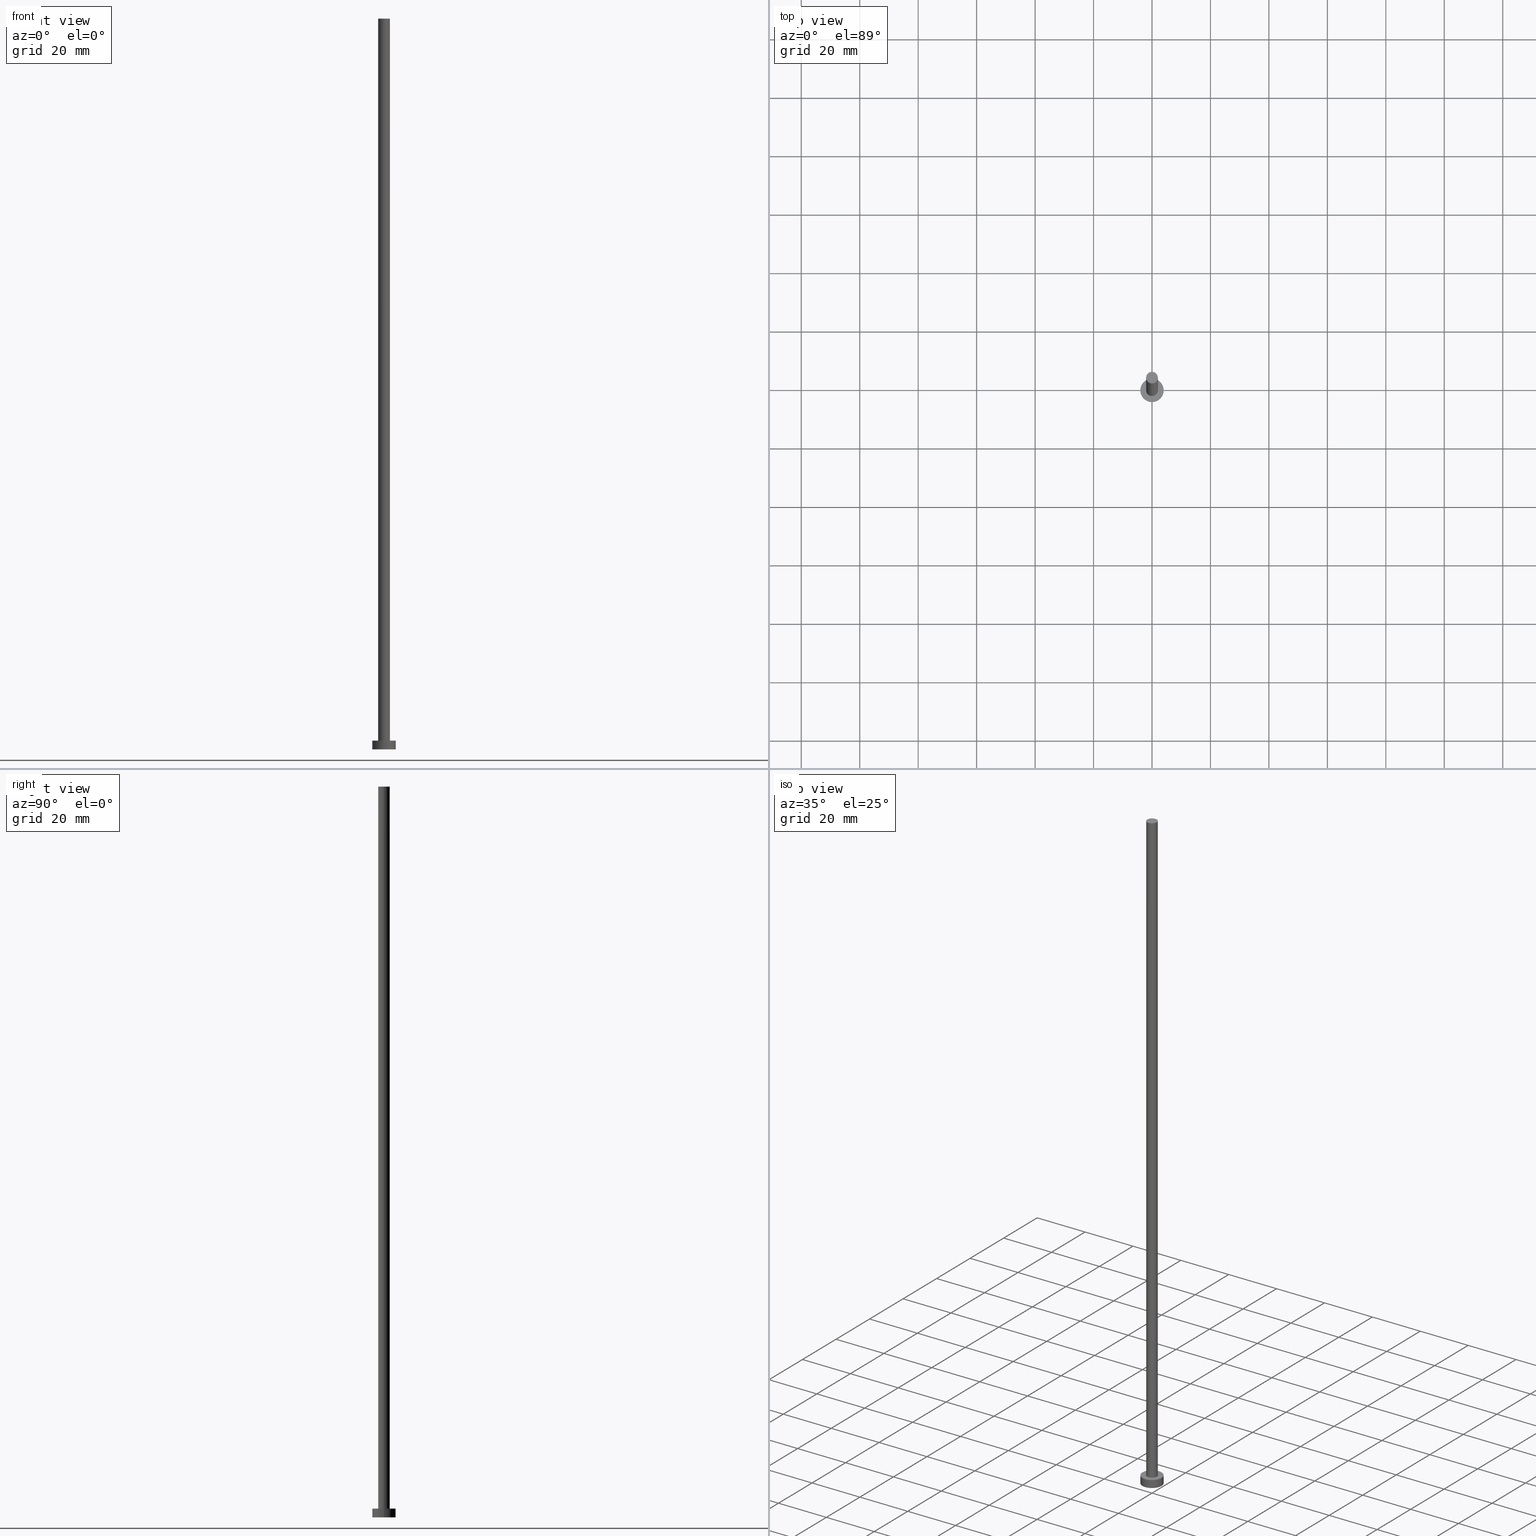
[diagram: canonical four-view strip — front | top / right | iso, engineering-drawing reading convention]
A machine part, canonical four-view strip (front | top / right | iso — engineering-drawing reading convention). The complete STEP part file that produces these views, byte-faithful:
ISO-10303-21;
HEADER;
FILE_DESCRIPTION (( 'STEP AP203' ),
    '1' );
FILE_NAME ('23d9.STEP',
    '2023-02-13T13:57:24',
    ( '' ),
    ( '' ),
    'SwSTEP 2.0',
    'SolidWorks 2019',
    '' );
FILE_SCHEMA (( 'CONFIG_CONTROL_DESIGN' ));
ENDSEC;

DATA;
#1 = CYLINDRICAL_SURFACE ( 'NONE', #250, 4.000000000000000000 ) ;
#2 = DIRECTION ( 'NONE',  ( 1.000000000000000000, 0.000000000000000000, 0.000000000000000000 ) ) ;
#3 = PRODUCT_DEFINITION ( 'NEZN�M�', '', #213, #71 ) ;
#4 =( LENGTH_UNIT ( ) NAMED_UNIT ( * ) SI_UNIT ( .MILLI., .METRE. ) );
#5 = PERSON_AND_ORGANIZATION ( #16, #43 ) ;
#6 = APPROVAL_STATUS ( 'not_yet_approved' ) ;
#7 = CARTESIAN_POINT ( 'NONE',  ( -4.000000000000000000, 0.000000000000000000, 3.000000000000000000 ) ) ;
#8 = PERSON_AND_ORGANIZATION ( #16, #43 ) ;
#9 = ADVANCED_FACE ( 'NONE', ( #72 ), #151, .T. ) ;
#10 = PERSON_AND_ORGANIZATION ( #16, #43 ) ;
#11 = EDGE_LOOP ( 'NONE', ( #129, #175, #130, #110 ) ) ;
#12 = ORIENTED_EDGE ( 'NONE', *, *, #241, .T. ) ;
#13 = ORIENTED_EDGE ( 'NONE', *, *, #154, .T. ) ;
#14 = DIRECTION ( 'NONE',  ( -1.000000000000000000, 0.000000000000000000, 0.000000000000000000 ) ) ;
#15 = CC_DESIGN_APPROVAL ( #200, ( #213 ) ) ;
#16 = PERSON ( 'NEUR�EN�', 'NEUR�EN�', 'NEUR�EN�', ('NEUR�EN�'), ('NEUR�EN�'), ('NEUR�EN�') ) ;
#17 = DIRECTION ( 'NONE',  ( -1.000000000000000000, 0.000000000000000000, 0.000000000000000000 ) ) ;
#18 = DIRECTION ( 'NONE',  ( -0.000000000000000000, -0.000000000000000000, -1.000000000000000000 ) ) ;
#19 = ADVANCED_FACE ( 'NONE', ( #191 ), #92, .T. ) ;
#20 =( GEOMETRIC_REPRESENTATION_CONTEXT ( 3 ) GLOBAL_UNCERTAINTY_ASSIGNED_CONTEXT ( ( #224 ) ) GLOBAL_UNIT_ASSIGNED_CONTEXT ( ( #4, #240, #104 ) ) REPRESENTATION_CONTEXT ( 'NONE', 'WORKASPACE' ) );
#21 = DIRECTION ( 'NONE',  ( 1.000000000000000000, 0.000000000000000000, -0.000000000000000000 ) ) ;
#22 = DIRECTION ( 'NONE',  ( 0.000000000000000000, 0.000000000000000000, 1.000000000000000000 ) ) ;
#23 = CARTESIAN_POINT ( 'NONE',  ( 0.000000000000000000, 0.000000000000000000, 0.000000000000000000 ) ) ;
#24 = LINE ( 'NONE', #7, #239 ) ;
#25 = APPLICATION_PROTOCOL_DEFINITION ( 'international standard', 'config_control_design', 1994, #88 ) ;
#26 = CARTESIAN_POINT ( 'NONE',  ( -4.000000000000000000, 0.000000000000000000, 0.000000000000000000 ) ) ;
#27 = EDGE_CURVE ( 'NONE', #190, #208, #68, .T. ) ;
#28 = COORDINATED_UNIVERSAL_TIME_OFFSET ( 1, 0, .AHEAD. ) ;
#29 = CC_DESIGN_APPROVAL ( #40, ( #70 ) ) ;
#30 = DATE_TIME_ROLE ( 'creation_date' ) ;
#31 = APPROVAL_ROLE ( '' ) ;
#32 = VERTEX_POINT ( 'NONE', #216 ) ;
#33 = ADVANCED_BREP_SHAPE_REPRESENTATION ( '23d9', ( #108, #87 ), #20 ) ;
#34 = VERTEX_POINT ( 'NONE', #157 ) ;
#35 = APPROVAL_PERSON_ORGANIZATION ( #5, #200, #124 ) ;
#36 = CARTESIAN_POINT ( 'NONE',  ( 0.000000000000000000, 0.000000000000000000, 250.0000000000000000 ) ) ;
#37 = VECTOR ( 'NONE', #62, 1000.000000000000000 ) ;
#38 = CARTESIAN_POINT ( 'NONE',  ( -2.000000000000000000, 0.000000000000000000, 250.0000000000000000 ) ) ;
#39 = FACE_OUTER_BOUND ( 'NONE', #111, .T. ) ;
#40 = APPROVAL ( #168, 'NEUR�EN�' ) ;
#41 = CARTESIAN_POINT ( 'NONE',  ( 2.000000000000000000, 2.449293598294706414E-16, 250.0000000000000000 ) ) ;
#42 = AXIS2_PLACEMENT_3D ( 'NONE', #115, #22, #181 ) ;
#43 = ORGANIZATION ( 'NEUR�EN�', 'NEUR�EN�', '' ) ;
#44 = DIRECTION ( 'NONE',  ( 1.000000000000000000, 0.000000000000000000, 0.000000000000000000 ) ) ;
#45 = DIRECTION ( 'NONE',  ( 1.000000000000000000, 0.000000000000000000, 0.000000000000000000 ) ) ;
#46 = DIRECTION ( 'NONE',  ( 0.000000000000000000, 0.000000000000000000, 1.000000000000000000 ) ) ;
#47 = DIRECTION ( 'NONE',  ( -0.000000000000000000, -0.000000000000000000, -1.000000000000000000 ) ) ;
#48 = VECTOR ( 'NONE', #162, 1000.000000000000000 ) ;
#49 = PERSON_AND_ORGANIZATION ( #16, #43 ) ;
#50 = AXIS2_PLACEMENT_3D ( 'NONE', #80, #100, #2 ) ;
#51 = COORDINATED_UNIVERSAL_TIME_OFFSET ( 1, 0, .AHEAD. ) ;
#52 = ADVANCED_FACE ( 'NONE', ( #137 ), #63, .T. ) ;
#53 = APPROVAL_DATE_TIME ( #69, #40 ) ;
#54 = EDGE_LOOP ( 'NONE', ( #73, #76, #13, #147 ) ) ;
#55 = ADVANCED_FACE ( 'NONE', ( #160, #199 ), #99, .T. ) ;
#56 = EDGE_LOOP ( 'NONE', ( #249, #192 ) ) ;
#57 = ORIENTED_EDGE ( 'NONE', *, *, #145, .F. ) ;
#58 = EDGE_CURVE ( 'NONE', #211, #32, #121, .T. ) ;
#59 = DIRECTION ( 'NONE',  ( 1.000000000000000000, 0.000000000000000000, 0.000000000000000000 ) ) ;
#60 = CIRCLE ( 'NONE', #205, 4.000000000000000000 ) ;
#61 = DIRECTION ( 'NONE',  ( 1.000000000000000000, 0.000000000000000000, 0.000000000000000000 ) ) ;
#62 = DIRECTION ( 'NONE',  ( -0.000000000000000000, -0.000000000000000000, -1.000000000000000000 ) ) ;
#63 = PLANE ( 'NONE',  #85 ) ;
#64 = AXIS2_PLACEMENT_3D ( 'NONE', #217, #77, #201 ) ;
#65 = CARTESIAN_POINT ( 'NONE',  ( 0.000000000000000000, 0.000000000000000000, 250.0000000000000000 ) ) ;
#66 = CALENDAR_DATE ( 2023, 13, 2 ) ;
#67 = PERSON_AND_ORGANIZATION ( #16, #43 ) ;
#68 = CIRCLE ( 'NONE', #169, 2.000000000000000000 ) ;
#69 = DATE_AND_TIME ( #109, #219 ) ;
#70 = SECURITY_CLASSIFICATION ( '', '', #187 ) ;
#71 = DESIGN_CONTEXT ( 'detailed design', #88, 'design' ) ;
#72 = FACE_OUTER_BOUND ( 'NONE', #11, .T. ) ;
#73 = ORIENTED_EDGE ( 'NONE', *, *, #139, .F. ) ;
#74 = APPROVAL_PERSON_ORGANIZATION ( #10, #40, #31 ) ;
#75 = CARTESIAN_POINT ( 'NONE',  ( 0.000000000000000000, 0.000000000000000000, 250.0000000000000000 ) ) ;
#76 = ORIENTED_EDGE ( 'NONE', *, *, #79, .F. ) ;
#77 = DIRECTION ( 'NONE',  ( 0.000000000000000000, 0.000000000000000000, 1.000000000000000000 ) ) ;
#78 = CARTESIAN_POINT ( 'NONE',  ( -2.000000000000000000, 0.000000000000000000, 3.000000000000000000 ) ) ;
#79 = EDGE_CURVE ( 'NONE', #32, #211, #159, .T. ) ;
#80 = CARTESIAN_POINT ( 'NONE',  ( 0.000000000000000000, 0.000000000000000000, 3.000000000000000000 ) ) ;
#81 = DIRECTION ( 'NONE',  ( -0.000000000000000000, -0.000000000000000000, -1.000000000000000000 ) ) ;
#82 = CARTESIAN_POINT ( 'NONE',  ( 2.000000000000000000, 2.449293598294706414E-16, 250.0000000000000000 ) ) ;
#83 = ADVANCED_FACE ( 'NONE', ( #39 ), #1, .T. ) ;
#84 = DATE_AND_TIME ( #184, #228 ) ;
#85 = AXIS2_PLACEMENT_3D ( 'NONE', #65, #94, #21 ) ;
#86 = DATE_AND_TIME ( #206, #171 ) ;
#87 = AXIS2_PLACEMENT_3D ( 'NONE', #221, #46, #144 ) ;
#88 = APPLICATION_CONTEXT ( 'configuration controlled 3d designs of mechanical parts and assemblies' ) ;
#89 = PERSON_AND_ORGANIZATION_ROLE ( 'design_owner' ) ;
#90 = ORIENTED_EDGE ( 'NONE', *, *, #226, .T. ) ;
#91 = AXIS2_PLACEMENT_3D ( 'NONE', #23, #255, #155 ) ;
#92 = CYLINDRICAL_SURFACE ( 'NONE', #245, 2.000000000000000000 ) ;
#93 = EDGE_LOOP ( 'NONE', ( #127, #174, #12, #247 ) ) ;
#94 = DIRECTION ( 'NONE',  ( 0.000000000000000000, 0.000000000000000000, 1.000000000000000000 ) ) ;
#95 = AXIS2_PLACEMENT_3D ( 'NONE', #36, #112, #14 ) ;
#96 = DIRECTION ( 'NONE',  ( -1.000000000000000000, 0.000000000000000000, 0.000000000000000000 ) ) ;
#97 = AXIS2_PLACEMENT_3D ( 'NONE', #242, #102, #202 ) ;
#98 = DIRECTION ( 'NONE',  ( 0.000000000000000000, 0.000000000000000000, 1.000000000000000000 ) ) ;
#99 = PLANE ( 'NONE',  #42 ) ;
#100 = DIRECTION ( 'NONE',  ( 0.000000000000000000, 0.000000000000000000, 1.000000000000000000 ) ) ;
#101 = EDGE_CURVE ( 'NONE', #149, #252, #204, .T. ) ;
#102 = DIRECTION ( 'NONE',  ( 0.000000000000000000, 0.000000000000000000, 1.000000000000000000 ) ) ;
#103 = CC_DESIGN_PERSON_AND_ORGANIZATION_ASSIGNMENT ( #220, #123, ( #213 ) ) ;
#104 =( NAMED_UNIT ( * ) SI_UNIT ( $, .STERADIAN. ) SOLID_ANGLE_UNIT ( ) );
#105 = AXIS2_PLACEMENT_3D ( 'NONE', #253, #98, #45 ) ;
#106 = ADVANCED_FACE ( 'NONE', ( #118 ), #180, .F. ) ;
#107 = DATE_AND_TIME ( #66, #183 ) ;
#108 = MANIFOLD_SOLID_BREP ( 'P�idat vysunut�m3', #197 ) ;
#109 = CALENDAR_DATE ( 2023, 13, 2 ) ;
#110 = ORIENTED_EDGE ( 'NONE', *, *, #154, .F. ) ;
#111 = EDGE_LOOP ( 'NONE', ( #148, #90, #153, #212 ) ) ;
#112 = DIRECTION ( 'NONE',  ( -0.000000000000000000, -0.000000000000000000, -1.000000000000000000 ) ) ;
#113 = CARTESIAN_POINT ( 'NONE',  ( 0.000000000000000000, 0.000000000000000000, 3.000000000000000000 ) ) ;
#114 = CYLINDRICAL_SURFACE ( 'NONE', #161, 4.000000000000000000 ) ;
#115 = CARTESIAN_POINT ( 'NONE',  ( 0.000000000000000000, 0.000000000000000000, 3.000000000000000000 ) ) ;
#116 = LOCAL_TIME ( 14, 57, 24.00000000000000000, #126 ) ;
#117 = CARTESIAN_POINT ( 'NONE',  ( 0.000000000000000000, 0.000000000000000000, 3.000000000000000000 ) ) ;
#118 = FACE_OUTER_BOUND ( 'NONE', #251, .T. ) ;
#119 = CC_DESIGN_DATE_AND_TIME_ASSIGNMENT ( #188, #223, ( #70 ) ) ;
#120 = CARTESIAN_POINT ( 'NONE',  ( 4.000000000000000000, 4.898587196589412829E-16, 3.000000000000000000 ) ) ;
#121 = CIRCLE ( 'NONE', #186, 2.000000000000000000 ) ;
#122 = CIRCLE ( 'NONE', #193, 4.000000000000000000 ) ;
#123 = PERSON_AND_ORGANIZATION_ROLE ( 'design_supplier' ) ;
#124 = APPROVAL_ROLE ( '' ) ;
#125 = CIRCLE ( 'NONE', #50, 2.000000000000000000 ) ;
#126 = COORDINATED_UNIVERSAL_TIME_OFFSET ( 1, 0, .AHEAD. ) ;
#127 = ORIENTED_EDGE ( 'NONE', *, *, #226, .F. ) ;
#128 = EDGE_CURVE ( 'NONE', #208, #190, #125, .T. ) ;
#129 = ORIENTED_EDGE ( 'NONE', *, *, #58, .F. ) ;
#130 = ORIENTED_EDGE ( 'NONE', *, *, #27, .T. ) ;
#131 = ORIENTED_EDGE ( 'NONE', *, *, #128, .F. ) ;
#132 = CARTESIAN_POINT ( 'NONE',  ( 4.000000000000000000, 4.898587196589412829E-16, 0.000000000000000000 ) ) ;
#133 = VECTOR ( 'NONE', #218, 1000.000000000000000 ) ;
#134 = PRODUCT_DEFINITION_SHAPE ( 'NONE', 'NONE',  #3 ) ;
#135 = FACE_OUTER_BOUND ( 'NONE', #93, .T. ) ;
#136 = CARTESIAN_POINT ( 'NONE',  ( 0.000000000000000000, 0.000000000000000000, 3.000000000000000000 ) ) ;
#137 = FACE_OUTER_BOUND ( 'NONE', #209, .T. ) ;
#138 = DIRECTION ( 'NONE',  ( -0.000000000000000000, -0.000000000000000000, -1.000000000000000000 ) ) ;
#139 = EDGE_CURVE ( 'NONE', #211, #190, #215, .T. ) ;
#140 = PERSON_AND_ORGANIZATION_ROLE ( 'classification_officer' ) ;
#141 = PERSON_AND_ORGANIZATION_ROLE ( 'creator' ) ;
#142 = APPLICATION_CONTEXT ( 'configuration controlled 3d designs of mechanical parts and assemblies' ) ;
#143 = PERSON_AND_ORGANIZATION_ROLE ( 'creator' ) ;
#144 = DIRECTION ( 'NONE',  ( 1.000000000000000000, 0.000000000000000000, 0.000000000000000000 ) ) ;
#145 = EDGE_CURVE ( 'NONE', #252, #149, #122, .T. ) ;
#146 = SHAPE_DEFINITION_REPRESENTATION ( #134, #33 ) ;
#147 = ORIENTED_EDGE ( 'NONE', *, *, #128, .T. ) ;
#148 = ORIENTED_EDGE ( 'NONE', *, *, #246, .F. ) ;
#149 = VERTEX_POINT ( 'NONE', #132 ) ;
#150 = CIRCLE ( 'NONE', #97, 4.000000000000000000 ) ;
#151 = CYLINDRICAL_SURFACE ( 'NONE', #95, 2.000000000000000000 ) ;
#152 = CC_DESIGN_PERSON_AND_ORGANIZATION_ASSIGNMENT ( #67, #143, ( #213 ) ) ;
#153 = ORIENTED_EDGE ( 'NONE', *, *, #101, .T. ) ;
#154 = EDGE_CURVE ( 'NONE', #32, #208, #214, .T. ) ;
#155 = DIRECTION ( 'NONE',  ( 1.000000000000000000, 0.000000000000000000, -0.000000000000000000 ) ) ;
#156 = CC_DESIGN_APPROVAL ( #243, ( #3 ) ) ;
#157 = CARTESIAN_POINT ( 'NONE',  ( -4.000000000000000000, 0.000000000000000000, 3.000000000000000000 ) ) ;
#158 = CARTESIAN_POINT ( 'NONE',  ( 0.000000000000000000, 0.000000000000000000, 0.000000000000000000 ) ) ;
#159 = CIRCLE ( 'NONE', #64, 2.000000000000000000 ) ;
#160 = FACE_BOUND ( 'NONE', #189, .T. ) ;
#161 = AXIS2_PLACEMENT_3D ( 'NONE', #136, #18, #96 ) ;
#162 = DIRECTION ( 'NONE',  ( -0.000000000000000000, -0.000000000000000000, -1.000000000000000000 ) ) ;
#163 = PERSON_AND_ORGANIZATION ( #16, #43 ) ;
#164 = APPLICATION_PROTOCOL_DEFINITION ( 'international standard', 'config_control_design', 1994, #142 ) ;
#165 = EDGE_CURVE ( 'NONE', #34, #230, #60, .T. ) ;
#166 = CARTESIAN_POINT ( 'NONE',  ( 4.000000000000000000, 4.898587196589412829E-16, 3.000000000000000000 ) ) ;
#167 = APPROVAL_DATE_TIME ( #86, #243 ) ;
#168 = APPROVAL_STATUS ( 'not_yet_approved' ) ;
#169 = AXIS2_PLACEMENT_3D ( 'NONE', #117, #233, #44 ) ;
#170 = CC_DESIGN_PERSON_AND_ORGANIZATION_ASSIGNMENT ( #8, #140, ( #70 ) ) ;
#171 = LOCAL_TIME ( 14, 57, 24.00000000000000000, #237 ) ;
#172 = ORIENTED_EDGE ( 'NONE', *, *, #101, .F. ) ;
#173 = ADVANCED_FACE ( 'NONE', ( #135 ), #114, .T. ) ;
#174 = ORIENTED_EDGE ( 'NONE', *, *, #165, .F. ) ;
#175 = ORIENTED_EDGE ( 'NONE', *, *, #139, .T. ) ;
#176 = DIRECTION ( 'NONE',  ( -1.000000000000000000, 0.000000000000000000, 0.000000000000000000 ) ) ;
#177 = CC_DESIGN_PERSON_AND_ORGANIZATION_ASSIGNMENT ( #49, #141, ( #3 ) ) ;
#178 = CARTESIAN_POINT ( 'NONE',  ( 2.000000000000000000, 2.449293598294706414E-16, 3.000000000000000000 ) ) ;
#179 = CC_DESIGN_SECURITY_CLASSIFICATION ( #70, ( #213 ) ) ;
#180 = PLANE ( 'NONE',  #91 ) ;
#181 = DIRECTION ( 'NONE',  ( 1.000000000000000000, 0.000000000000000000, -0.000000000000000000 ) ) ;
#182 = DIRECTION ( 'NONE',  ( 1.000000000000000000, 0.000000000000000000, 0.000000000000000000 ) ) ;
#183 = LOCAL_TIME ( 14, 57, 24.00000000000000000, #28 ) ;
#184 = CALENDAR_DATE ( 2023, 13, 2 ) ;
#185 = PERSON_AND_ORGANIZATION ( #16, #43 ) ;
#186 = AXIS2_PLACEMENT_3D ( 'NONE', #232, #194, #182 ) ;
#187 = SECURITY_CLASSIFICATION_LEVEL ( 'unclassified' ) ;
#188 = DATE_AND_TIME ( #207, #116 ) ;
#189 = EDGE_LOOP ( 'NONE', ( #131, #225 ) ) ;
#190 = VERTEX_POINT ( 'NONE', #178 ) ;
#191 = FACE_OUTER_BOUND ( 'NONE', #54, .T. ) ;
#192 = ORIENTED_EDGE ( 'NONE', *, *, #246, .T. ) ;
#193 = AXIS2_PLACEMENT_3D ( 'NONE', #158, #231, #59 ) ;
#194 = DIRECTION ( 'NONE',  ( 0.000000000000000000, 0.000000000000000000, 1.000000000000000000 ) ) ;
#195 = PRODUCT_RELATED_PRODUCT_CATEGORY ( 'detail', '', ( #248 ) ) ;
#196 = CARTESIAN_POINT ( 'NONE',  ( 0.000000000000000000, 0.000000000000000000, 3.000000000000000000 ) ) ;
#197 = CLOSED_SHELL ( 'NONE', ( #9, #83, #173, #55, #106, #19, #52 ) ) ;
#198 = LINE ( 'NONE', #166, #133 ) ;
#199 = FACE_OUTER_BOUND ( 'NONE', #56, .T. ) ;
#200 = APPROVAL ( #6, 'NEUR�EN�' ) ;
#201 = DIRECTION ( 'NONE',  ( 1.000000000000000000, 0.000000000000000000, 0.000000000000000000 ) ) ;
#202 = DIRECTION ( 'NONE',  ( 1.000000000000000000, 0.000000000000000000, 0.000000000000000000 ) ) ;
#203 = MECHANICAL_CONTEXT ( 'NONE', #142, 'mechanical' ) ;
#204 = CIRCLE ( 'NONE', #105, 4.000000000000000000 ) ;
#205 = AXIS2_PLACEMENT_3D ( 'NONE', #113, #254, #61 ) ;
#206 = CALENDAR_DATE ( 2023, 13, 2 ) ;
#207 = CALENDAR_DATE ( 2023, 13, 2 ) ;
#208 = VERTEX_POINT ( 'NONE', #78 ) ;
#209 = EDGE_LOOP ( 'NONE', ( #227, #229 ) ) ;
#210 = APPROVAL_PERSON_ORGANIZATION ( #185, #243, #222 ) ;
#211 = VERTEX_POINT ( 'NONE', #41 ) ;
#212 = ORIENTED_EDGE ( 'NONE', *, *, #241, .F. ) ;
#213 = PRODUCT_DEFINITION_FORMATION_WITH_SPECIFIED_SOURCE ( 'LIBOVOLN�', '', #248, .NOT_KNOWN. ) ;
#214 = LINE ( 'NONE', #38, #37 ) ;
#215 = LINE ( 'NONE', #82, #48 ) ;
#216 = CARTESIAN_POINT ( 'NONE',  ( -2.000000000000000000, 0.000000000000000000, 250.0000000000000000 ) ) ;
#217 = CARTESIAN_POINT ( 'NONE',  ( 0.000000000000000000, 0.000000000000000000, 250.0000000000000000 ) ) ;
#218 = DIRECTION ( 'NONE',  ( -0.000000000000000000, -0.000000000000000000, -1.000000000000000000 ) ) ;
#219 = LOCAL_TIME ( 14, 57, 24.00000000000000000, #244 ) ;
#220 = PERSON_AND_ORGANIZATION ( #16, #43 ) ;
#221 = CARTESIAN_POINT ( 'NONE',  ( 0.000000000000000000, 0.000000000000000000, 0.000000000000000000 ) ) ;
#222 = APPROVAL_ROLE ( '' ) ;
#223 = DATE_TIME_ROLE ( 'classification_date' ) ;
#224 = UNCERTAINTY_MEASURE_WITH_UNIT (LENGTH_MEASURE( 1.000000000000000082E-05 ), #4, 'distance_accuracy_value', 'NONE');
#225 = ORIENTED_EDGE ( 'NONE', *, *, #27, .F. ) ;
#226 = EDGE_CURVE ( 'NONE', #230, #149, #198, .T. ) ;
#227 = ORIENTED_EDGE ( 'NONE', *, *, #79, .T. ) ;
#228 = LOCAL_TIME ( 14, 57, 24.00000000000000000, #51 ) ;
#229 = ORIENTED_EDGE ( 'NONE', *, *, #58, .T. ) ;
#230 = VERTEX_POINT ( 'NONE', #120 ) ;
#231 = DIRECTION ( 'NONE',  ( 0.000000000000000000, 0.000000000000000000, 1.000000000000000000 ) ) ;
#232 = CARTESIAN_POINT ( 'NONE',  ( 0.000000000000000000, 0.000000000000000000, 250.0000000000000000 ) ) ;
#233 = DIRECTION ( 'NONE',  ( 0.000000000000000000, 0.000000000000000000, 1.000000000000000000 ) ) ;
#234 = CC_DESIGN_PERSON_AND_ORGANIZATION_ASSIGNMENT ( #163, #89, ( #248 ) ) ;
#235 = APPROVAL_STATUS ( 'not_yet_approved' ) ;
#236 = CC_DESIGN_DATE_AND_TIME_ASSIGNMENT ( #84, #30, ( #3 ) ) ;
#237 = COORDINATED_UNIVERSAL_TIME_OFFSET ( 1, 0, .AHEAD. ) ;
#238 = APPROVAL_DATE_TIME ( #107, #200 ) ;
#239 = VECTOR ( 'NONE', #47, 1000.000000000000000 ) ;
#240 =( NAMED_UNIT ( * ) PLANE_ANGLE_UNIT ( ) SI_UNIT ( $, .RADIAN. ) );
#241 = EDGE_CURVE ( 'NONE', #34, #252, #24, .T. ) ;
#242 = CARTESIAN_POINT ( 'NONE',  ( 0.000000000000000000, 0.000000000000000000, 3.000000000000000000 ) ) ;
#243 = APPROVAL ( #235, 'NEUR�EN�' ) ;
#244 = COORDINATED_UNIVERSAL_TIME_OFFSET ( 1, 0, .AHEAD. ) ;
#245 = AXIS2_PLACEMENT_3D ( 'NONE', #75, #81, #176 ) ;
#246 = EDGE_CURVE ( 'NONE', #230, #34, #150, .T. ) ;
#247 = ORIENTED_EDGE ( 'NONE', *, *, #145, .T. ) ;
#248 = PRODUCT ( '23d9', '23d9', '', ( #203 ) ) ;
#249 = ORIENTED_EDGE ( 'NONE', *, *, #165, .T. ) ;
#250 = AXIS2_PLACEMENT_3D ( 'NONE', #196, #138, #17 ) ;
#251 = EDGE_LOOP ( 'NONE', ( #57, #172 ) ) ;
#252 = VERTEX_POINT ( 'NONE', #26 ) ;
#253 = CARTESIAN_POINT ( 'NONE',  ( 0.000000000000000000, 0.000000000000000000, 0.000000000000000000 ) ) ;
#254 = DIRECTION ( 'NONE',  ( 0.000000000000000000, 0.000000000000000000, 1.000000000000000000 ) ) ;
#255 = DIRECTION ( 'NONE',  ( 0.000000000000000000, 0.000000000000000000, 1.000000000000000000 ) ) ;
ENDSEC;
END-ISO-10303-21;
